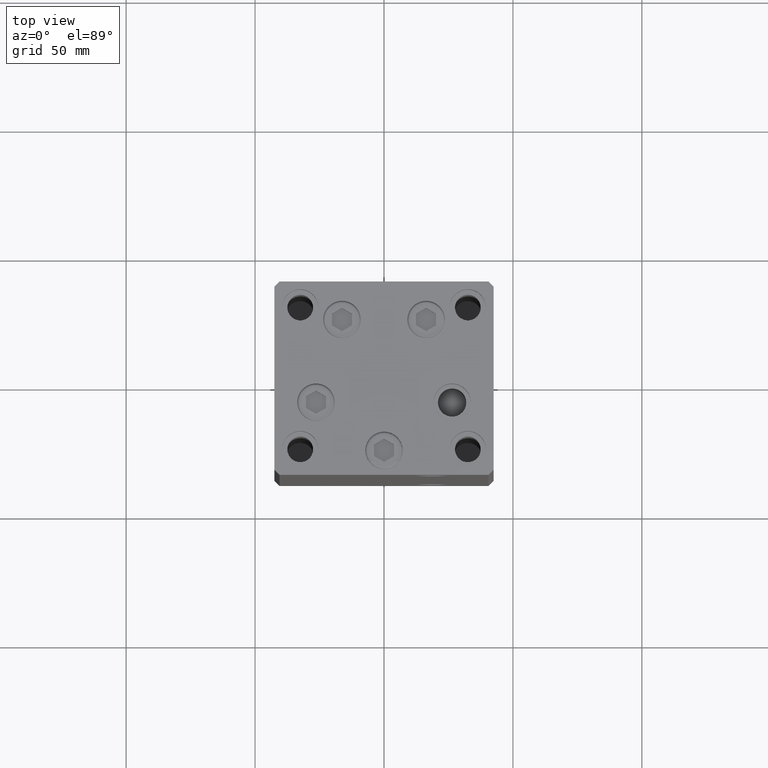
[diagram: clean part render]
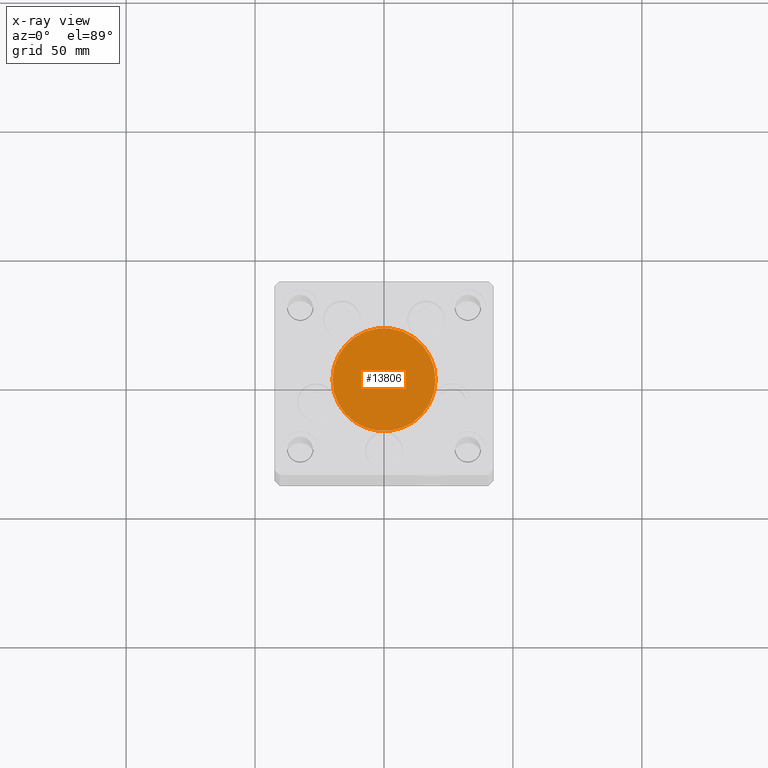
[diagram: x-ray — body ghosted, one internal face saturated and labeled with its STEP entity id]
A machine part, top view, then the same camera in x-ray: the body is ghosted and one INTERNAL B-rep face — a face not visible from any outside direction — is saturated and labeled: STEP entity #13806.
In plain terms, the highlighted planar face has unit normal (0, 0, -1).
Its self-contained STEP definition (entity closure, byte-faithful):
#3681 = CARTESIAN_POINT ( 'NONE',  ( 20.00000000000000000, 0.000000000000000000, -34.25000000000000000 ) ) ;
#4807 = DIRECTION ( 'NONE',  ( 0.000000000000000000, 0.000000000000000000, -1.000000000000000000 ) ) ;
#8096 = DIRECTION ( 'NONE',  ( -1.000000000000000000, 0.000000000000000000, -0.000000000000000000 ) ) ;
#11956 = AXIS2_PLACEMENT_3D ( 'NONE', #39079, #19725, #20229 ) ;
#13005 = EDGE_LOOP ( 'NONE', ( #33409, #30446 ) ) ;
#13806 = ADVANCED_FACE ( 'NONE', ( #43278 ), #23676, .T. ) ;
#15692 = AXIS2_PLACEMENT_3D ( 'NONE', #24174, #4807, #8096 ) ;
#19725 = DIRECTION ( 'NONE',  ( 0.000000000000000000, 0.000000000000000000, -1.000000000000000000 ) ) ;
#20229 = DIRECTION ( 'NONE',  ( -1.000000000000000000, 0.000000000000000000, 0.000000000000000000 ) ) ;
#23676 = PLANE ( 'NONE',  #15692 ) ;
#24174 = CARTESIAN_POINT ( 'NONE',  ( 0.000000000000000000, 0.000000000000000000, -34.25000000000000000 ) ) ;
#26409 = CIRCLE ( 'NONE', #47265, 20.00000000000000000 ) ;
#30446 = ORIENTED_EDGE ( 'NONE', *, *, #46762, .T. ) ;
#31712 = EDGE_CURVE ( 'NONE', #48297, #41918, #36058, .T. ) ;
#32499 = CARTESIAN_POINT ( 'NONE',  ( -20.00000000000000000, 2.449293598294706513E-15, -34.25000000000000000 ) ) ;
#33409 = ORIENTED_EDGE ( 'NONE', *, *, #31712, .T. ) ;
#36058 = CIRCLE ( 'NONE', #11956, 20.00000000000000000 ) ;
#38080 = DIRECTION ( 'NONE',  ( 0.000000000000000000, 0.000000000000000000, -1.000000000000000000 ) ) ;
#39079 = CARTESIAN_POINT ( 'NONE',  ( 0.000000000000000000, 0.000000000000000000, -34.25000000000000000 ) ) ;
#41106 = CARTESIAN_POINT ( 'NONE',  ( 0.000000000000000000, 0.000000000000000000, -34.25000000000000000 ) ) ;
#41847 = DIRECTION ( 'NONE',  ( -1.000000000000000000, 0.000000000000000000, 0.000000000000000000 ) ) ;
#41918 = VERTEX_POINT ( 'NONE', #32499 ) ;
#43278 = FACE_OUTER_BOUND ( 'NONE', #13005, .T. ) ;
#46762 = EDGE_CURVE ( 'NONE', #41918, #48297, #26409, .T. ) ;
#47265 = AXIS2_PLACEMENT_3D ( 'NONE', #41106, #38080, #41847 ) ;
#48297 = VERTEX_POINT ( 'NONE', #3681 ) ;